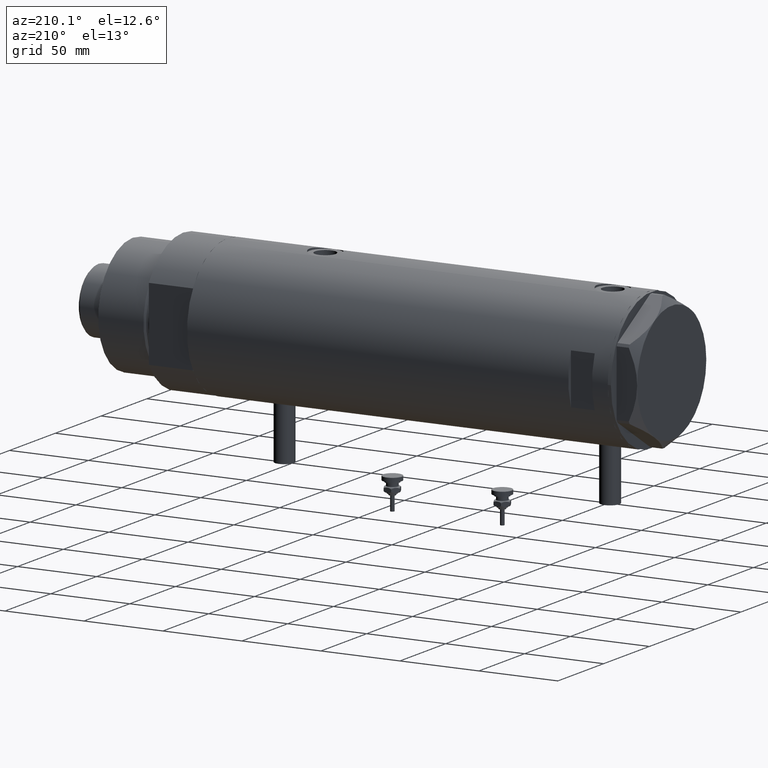
[diagram: clean part render]
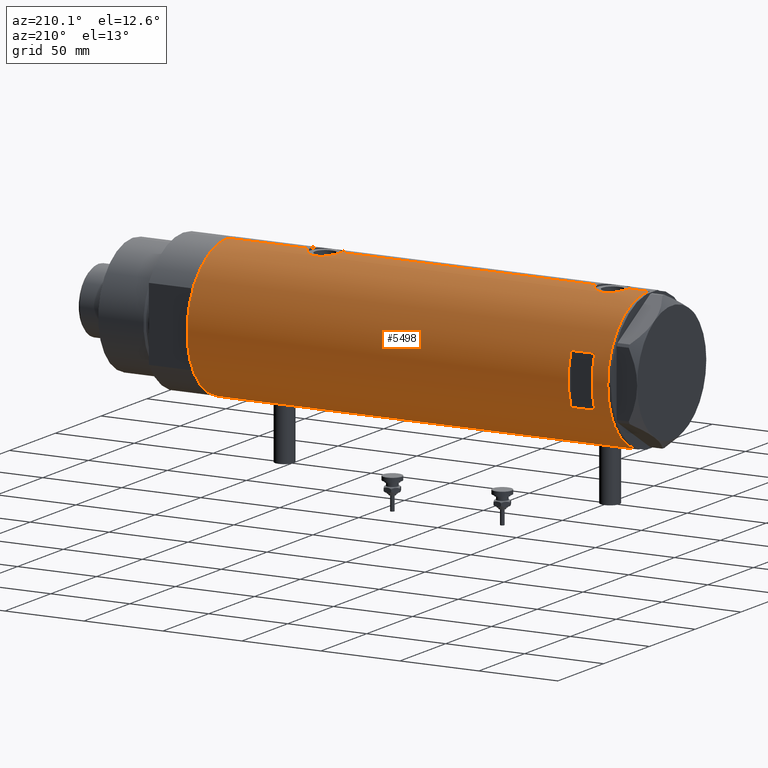
[diagram: same view with one face highlighted and labeled with its STEP entity id]
A machine part, auxiliary view. The second image highlights one B-rep face of the part: STEP entity #5498.
In plain terms, the highlighted cylindrical surface (partial cylindrical patch) has radius 44 mm, axis along (-1, -0, 0).
Its self-contained STEP definition (entity closure, byte-faithful):
#27 = CARTESIAN_POINT ( 'NONE',  ( -43.55973179376100290, 6.209370339246232717, 108.3793823294012668 ) ) ;
#59 = CARTESIAN_POINT ( 'NONE',  ( 42.96547725528408535, 9.488625330801083280, -67.87549652788928256 ) ) ;
#62 = CARTESIAN_POINT ( 'NONE',  ( -43.91413175532567692, 2.773555030353453965, 114.8158423836674302 ) ) ;
#72 = CARTESIAN_POINT ( 'NONE',  ( 43.04663170950395568, 9.110642017076083121, 106.7645249780960484 ) ) ;
#81 = CARTESIAN_POINT ( 'NONE',  ( 43.04652664061920575, 9.111152824375427173, -66.96541990785412679 ) ) ;
#92 = CARTESIAN_POINT ( 'NONE',  ( 43.71659050864932539, 5.015880325000608764, -79.77566825963823760 ) ) ;
#94 = CARTESIAN_POINT ( 'NONE',  ( -43.94507179847653333, 2.206027755801677870, 115.0513152228179052 ) ) ;
#109 = CARTESIAN_POINT ( 'NONE',  ( 43.17306590853068116, 8.492365194390515626, -65.80987467306543692 ) ) ;
#118 = CARTESIAN_POINT ( 'NONE',  ( -44.00000000000000000, 5.388445781982983516E-15, 102.9499999999999886 ) ) ;
#121 = CARTESIAN_POINT ( 'NONE',  ( -43.71901936021023971, 4.969830049220626655, 105.3883236230112317 ) ) ;
#128 = CARTESIAN_POINT ( 'NONE',  ( 43.04652664061922707, 9.111152824375430725, 115.0345800921458874 ) ) ;
#162 = VECTOR ( 'NONE', #1765, 1000.000000000000000 ) ;
#167 = VERTEX_POINT ( 'NONE', #1146 ) ;
#287 = LINE ( 'NONE', #1639, #4121 ) ;
#329 = CARTESIAN_POINT ( 'NONE',  ( -43.61859254253774054, 5.782454868881351295, -94.50213599105534001 ) ) ;
#334 = ORIENTED_EDGE ( 'NONE', *, *, #3874, .T. ) ;
#364 = CARTESIAN_POINT ( 'NONE',  ( -43.99417607942194763, 0.8200150578638748522, -90.69063327483260650 ) ) ;
#367 = CARTESIAN_POINT ( 'NONE',  ( 43.85884410404901246, 3.534688330930384925, 101.5398019124966567 ) ) ;
#394 = CARTESIAN_POINT ( 'NONE',  ( -43.97068415157983878, 1.617901284326946909, -90.85954871699952662 ) ) ;
#425 = ORIENTED_EDGE ( 'NONE', *, *, #2014, .F. ) ;
#444 = CARTESIAN_POINT ( 'NONE',  ( 0.000000000000000000, 0.000000000000000000, 108.1999999999999602 ) ) ;
#458 = VECTOR ( 'NONE', #969, 1000.000000000000000 ) ;
#473 = ORIENTED_EDGE ( 'NONE', *, *, #5295, .F. ) ;
#501 = CARTESIAN_POINT ( 'NONE',  ( -43.66555354895124452, 5.415612800338318600, 112.3265635717755799 ) ) ;
#508 = VERTEX_POINT ( 'NONE', #1233 ) ;
#515 = CARTESIAN_POINT ( 'NONE',  ( 44.00000000000000000, 0.000000000000000000, -133.1999999999999886 ) ) ;
#523 = CARTESIAN_POINT ( 'NONE',  ( 42.90786968859021044, 9.742642423712167599, -73.37802296547127412 ) ) ;
#541 = CARTESIAN_POINT ( 'NONE',  ( 43.13962074468734187, 8.660138848900679420, -66.08910258836066021 ) ) ;
#551 = CARTESIAN_POINT ( 'NONE',  ( 42.96879251999280314, 9.470609476412112926, -74.32722899941056482 ) ) ;
#556 = DIRECTION ( 'NONE',  ( 0.000000000000000000, 0.000000000000000000, 1.000000000000000000 ) ) ;
#585 = CARTESIAN_POINT ( 'NONE',  ( 44.00000000000000000, -3.135075661981687665E-15, -81.09999999999999432 ) ) ;
#586 = CARTESIAN_POINT ( 'NONE',  ( -43.80646232387288563, 4.132500855894024383, 113.9064558540335526 ) ) ;
#595 = CARTESIAN_POINT ( 'NONE',  ( 42.90786968859021044, 9.742642423712171151, 108.6219770345287685 ) ) ;
#598 = EDGE_CURVE ( 'NONE', #940, #1151, #4781, .T. ) ;
#599 = CARTESIAN_POINT ( 'NONE',  ( -44.00000000000000000, 5.388445916248353619E-15, 133.1999999999999886 ) ) ;
#616 = CARTESIAN_POINT ( 'NONE',  ( -43.61859254253774054, 5.782454868881351295, 111.5978640089446401 ) ) ;
#644 = CARTESIAN_POINT ( 'NONE',  ( -44.00000000000000000, 5.388445781982983516E-15, 102.9499999999999886 ) ) ;
#658 = CARTESIAN_POINT ( 'NONE',  ( -44.00000000000000000, 5.388445916248353619E-15, -133.1999999999999886 ) ) ;
#667 = CARTESIAN_POINT ( 'NONE',  ( 43.50382207688846137, 6.605942769308308371, -63.56395311161777784 ) ) ;
#690 = DIRECTION ( 'NONE',  ( 0.000000000000000000, 0.000000000000000000, 1.000000000000000000 ) ) ;
#738 = VERTEX_POINT ( 'NONE', #5865 ) ;
#748 = CARTESIAN_POINT ( 'NONE',  ( 44.00000000000000000, 0.000000000000000000, -133.1999999999999886 ) ) ;
#755 = VERTEX_POINT ( 'NONE', #2306 ) ;
#799 = CARTESIAN_POINT ( 'NONE',  ( -43.97181775256600389, 1.624866278047415680, -102.9489291838509359 ) ) ;
#803 = CARTESIAN_POINT ( 'NONE',  ( 44.00000000000002132, 0.6630566900259825536, 100.9000000000000199 ) ) ;
#826 = CARTESIAN_POINT ( 'NONE',  ( -43.67863969133946966, 5.309394106110037370, -93.59620703497449767 ) ) ;
#846 = ORIENTED_EDGE ( 'NONE', *, *, #1731, .T. ) ;
#855 = CARTESIAN_POINT ( 'NONE',  ( -44.00000000000000711, 0.4135148353567996149, -90.64999999999996305 ) ) ;
#887 = DIRECTION ( 'NONE',  ( 1.000000000000000000, -8.881784197001252323E-16, 0.000000000000000000 ) ) ;
#889 = CARTESIAN_POINT ( 'NONE',  ( -43.83576802966640429, 3.813209221108459168, -101.8686549035471103 ) ) ;
#908 = CARTESIAN_POINT ( 'NONE',  ( -43.67867890111967455, 5.309046579850785541, -100.2042277907602141 ) ) ;
#937 = LINE ( 'NONE', #2902, #1123 ) ;
#940 = VERTEX_POINT ( 'NONE', #1224 ) ;
#969 = DIRECTION ( 'NONE',  ( 0.000000000000000000, 0.000000000000000000, 1.000000000000000000 ) ) ;
#979 = CARTESIAN_POINT ( 'NONE',  ( 43.98503110884232115, 1.314607393679875225, -81.03470984345550221 ) ) ;
#982 = CARTESIAN_POINT ( 'NONE',  ( 0.000000000000000000, 0.000000000000000000, -133.1999999999999886 ) ) ;
#1025 = CARTESIAN_POINT ( 'NONE',  ( 43.39051256276902535, 7.301963662770313057, -64.25975531787057093 ) ) ;
#1037 = CARTESIAN_POINT ( 'NONE',  ( -43.64133398152736021, 5.607447751852152606, 106.4321395498756715 ) ) ;
#1041 = CIRCLE ( 'NONE', #5596, 44.00000000000000000 ) ;
#1048 = CARTESIAN_POINT ( 'NONE',  ( 43.99635668041008074, 0.6544833911834539997, 120.8840070847752912 ) ) ;
#1065 = CARTESIAN_POINT ( 'NONE',  ( 42.84850876528982866, 10.00026482975808051, -70.44941694529578058 ) ) ;
#1073 = CARTESIAN_POINT ( 'NONE',  ( 43.39051256276903246, 7.301963662770311281, 117.7402446821294149 ) ) ;
#1098 = CARTESIAN_POINT ( 'NONE',  ( 44.00000000000000000, 0.000000000000000000, 133.1999999999999886 ) ) ;
#1112 = CARTESIAN_POINT ( 'NONE',  ( 43.57805684119164624, 6.103282219787164564, -63.15183798352140343 ) ) ;
#1123 = VECTOR ( 'NONE', #3734, 1000.000000000000000 ) ;
#1127 = CARTESIAN_POINT ( 'NONE',  ( -43.88883895882799635, 3.130924084324101297, 103.7868754425185358 ) ) ;
#1128 = VERTEX_POINT ( 'NONE', #5664 ) ;
#1146 = CARTESIAN_POINT ( 'NONE',  ( 44.00000000000000000, -2.552687571866728611E-15, 100.8999999999999915 ) ) ;
#1151 = VERTEX_POINT ( 'NONE', #118 ) ;
#1156 = ORIENTED_EDGE ( 'NONE', *, *, #4025, .T. ) ;
#1165 = DIRECTION ( 'NONE',  ( 0.000000000000000000, 0.000000000000000000, 1.000000000000000000 ) ) ;
#1173 = ORIENTED_EDGE ( 'NONE', *, *, #5143, .F. ) ;
#1224 = CARTESIAN_POINT ( 'NONE',  ( -44.00000000000000000, 4.742435893011557518E-16, -90.64999999999997726 ) ) ;
#1228 = CIRCLE ( 'NONE', #4393, 44.00000000000000000 ) ;
#1233 = CARTESIAN_POINT ( 'NONE',  ( -44.00000000000000000, 5.388445916248353619E-15, -133.1999999999999886 ) ) ;
#1249 = VECTOR ( 'NONE', #1165, 1000.000000000000000 ) ;
#1253 = CARTESIAN_POINT ( 'NONE',  ( -43.64122538274737195, 5.608286354294323317, -94.13388613036657659 ) ) ;
#1283 = CARTESIAN_POINT ( 'NONE',  ( -43.64133398152736021, 5.607447751852152606, -99.66786045012435125 ) ) ;
#1310 = CARTESIAN_POINT ( 'NONE',  ( -43.58221825186232223, 6.049526113783018744, -98.52262970817956500 ) ) ;
#1314 = CARTESIAN_POINT ( 'NONE',  ( 43.46520118248735542, 6.843279251446916511, 103.6010167278783172 ) ) ;
#1341 = CARTESIAN_POINT ( 'NONE',  ( -43.59995593514495482, 5.920088975424566691, -94.88582091308217059 ) ) ;
#1351 = CIRCLE ( 'NONE', #3080, 44.00000000000000000 ) ;
#1371 = DIRECTION ( 'NONE',  ( -1.000000000000000000, -8.881784197001252323E-16, 0.000000000000000000 ) ) ;
#1374 = CARTESIAN_POINT ( 'NONE',  ( -43.80687348212602217, 4.128385987736833407, -101.6104874331096113 ) ) ;
#1389 = ORIENTED_EDGE ( 'NONE', *, *, #598, .T. ) ;
#1436 = LINE ( 'NONE', #515, #458 ) ;
#1450 = CARTESIAN_POINT ( 'NONE',  ( -43.71938389712227746, 4.966728892888062852, 113.0161445234086841 ) ) ;
#1487 = CARTESIAN_POINT ( 'NONE',  ( 42.84850876528983576, 10.00026482975808229, 111.5505830547042621 ) ) ;
#1494 = CARTESIAN_POINT ( 'NONE',  ( 44.00000000000000000, 0.3269372501759409411, -61.10000000000001563 ) ) ;
#1509 = CARTESIAN_POINT ( 'NONE',  ( 43.17277162440354488, 8.493905080221260562, -76.38787035108494194 ) ) ;
#1518 = CARTESIAN_POINT ( 'NONE',  ( 42.99303682946563043, 9.360292926890506848, 107.3657577979279694 ) ) ;
#1527 = CARTESIAN_POINT ( 'NONE',  ( 43.27871541412905998, 7.937063204555987461, -65.00825002753970239 ) ) ;
#1538 = CARTESIAN_POINT ( 'NONE',  ( -44.00000000000000711, 0.4135148353567996149, 115.4500000000000028 ) ) ;
#1558 = CARTESIAN_POINT ( 'NONE',  ( 43.35257020184193522, 7.523219862841653338, -64.50397445915864125 ) ) ;
#1584 = CARTESIAN_POINT ( 'NONE',  ( 43.71454618729809738, 5.012329428678969911, -62.44063025941689915 ) ) ;
#1604 = CARTESIAN_POINT ( 'NONE',  ( 43.24261242176996234, 8.130827601038829400, 116.7305518685416814 ) ) ;
#1633 = DIRECTION ( 'NONE',  ( 0.000000000000000000, 0.000000000000000000, 1.000000000000000000 ) ) ;
#1639 = CARTESIAN_POINT ( 'NONE',  ( 15.96871942267132027, 40.99999999999999289, -133.1999999999999886 ) ) ;
#1684 = VERTEX_POINT ( 'NONE', #1725 ) ;
#1692 = CARTESIAN_POINT ( 'NONE',  ( -43.87596296923810968, 3.305851531861728976, 103.8919641412373807 ) ) ;
#1725 = CARTESIAN_POINT ( 'NONE',  ( 44.00000000000000000, -3.917104602093038540E-21, 120.8999999999999773 ) ) ;
#1731 = EDGE_CURVE ( 'NONE', #508, #738, #5757, .T. ) ;
#1765 = DIRECTION ( 'NONE',  ( 0.000000000000000000, 0.000000000000000000, 1.000000000000000000 ) ) ;
#1779 = CARTESIAN_POINT ( 'NONE',  ( 0.000000000000000000, 0.000000000000000000, -133.1999999999999886 ) ) ;
#1786 = EDGE_CURVE ( 'NONE', #1873, #3318, #937, .T. ) ;
#1827 = VECTOR ( 'NONE', #1633, 1000.000000000000000 ) ;
#1844 = CARTESIAN_POINT ( 'NONE',  ( 44.00000000000000000, -2.552687571866728611E-15, 100.8999999999999915 ) ) ;
#1873 = VERTEX_POINT ( 'NONE', #2376 ) ;
#1884 = VERTEX_POINT ( 'NONE', #1923 ) ;
#1907 = CARTESIAN_POINT ( 'NONE',  ( -43.58221825186232223, 6.049526113783018744, 107.5773702918203583 ) ) ;
#1923 = CARTESIAN_POINT ( 'NONE',  ( 44.00000000000000000, -3.135075661981687665E-15, -81.09999999999999432 ) ) ;
#1940 = CARTESIAN_POINT ( 'NONE',  ( -43.57657963456318839, 6.089610171536606664, 110.6217853958080894 ) ) ;
#1941 = ORIENTED_EDGE ( 'NONE', *, *, #5137, .F. ) ;
#1961 = CARTESIAN_POINT ( 'NONE',  ( 43.57657781376909156, 6.094873943596678778, -79.03474301119597101 ) ) ;
#1962 = CARTESIAN_POINT ( 'NONE',  ( -43.58362292239462477, 6.039157555656595733, 110.8226357844803402 ) ) ;
#1969 = CARTESIAN_POINT ( 'NONE',  ( 43.98169492814103165, 1.310824514239766536, 120.8191978038068299 ) ) ;
#1986 = CARTESIAN_POINT ( 'NONE',  ( 44.00000000000001421, 0.6630566900259822205, -81.10000000000002274 ) ) ;
#1989 = CARTESIAN_POINT ( 'NONE',  ( -43.74805001749254529, 4.711035428619386956, 105.0722393587420243 ) ) ;
#1997 = CARTESIAN_POINT ( 'NONE',  ( 42.86396777580258544, 9.934664719553397916, 112.2157619902652073 ) ) ;
#2002 = ORIENTED_EDGE ( 'NONE', *, *, #4961, .F. ) ;
#2014 = EDGE_CURVE ( 'NONE', #5050, #2153, #1228, .T. ) ;
#2034 = CARTESIAN_POINT ( 'NONE',  ( 43.80640706382536109, 4.134078575915387965, 120.0113282156208925 ) ) ;
#2045 = CARTESIAN_POINT ( 'NONE',  ( 43.99635668041005943, 0.6544833911834577744, -61.11599291522468747 ) ) ;
#2153 = VERTEX_POINT ( 'NONE', #599 ) ;
#2165 = CARTESIAN_POINT ( 'NONE',  ( -43.97754480947185129, 1.419697478855583617, -90.80996723947920657 ) ) ;
#2173 = CARTESIAN_POINT ( 'NONE',  ( -43.80687348212602217, 4.128385987736833407, 104.4895125668903404 ) ) ;
#2194 = CARTESIAN_POINT ( 'NONE',  ( -43.95549163632549750, 2.014511215452027937, -102.8305895570497626 ) ) ;
#2199 = CARTESIAN_POINT ( 'NONE',  ( 44.00000000000000000, -3.917155089190972685E-21, -61.10000000000000142 ) ) ;
#2236 = AXIS2_PLACEMENT_3D ( 'NONE', #1779, #5909, #3583 ) ;
#2237 = CARTESIAN_POINT ( 'NONE',  ( 43.77939001959705223, 4.442287752090382291, 101.9169382244083977 ) ) ;
#2259 = ORIENTED_EDGE ( 'NONE', *, *, #3077, .F. ) ;
#2261 = CARTESIAN_POINT ( 'NONE',  ( -43.99999999999997158, 0.4081702738789203533, -103.1499999999999488 ) ) ;
#2287 = CARTESIAN_POINT ( 'NONE',  ( -43.71938389712227746, 4.966728892888062852, -93.08385547659128179 ) ) ;
#2306 = CARTESIAN_POINT ( 'NONE',  ( 15.96871942267132027, 40.99999999999999289, 108.1999999999999744 ) ) ;
#2363 = CARTESIAN_POINT ( 'NONE',  ( -43.59995593514495482, 5.920088975424566691, 111.2141790869178237 ) ) ;
#2376 = CARTESIAN_POINT ( 'NONE',  ( -15.96871942267132027, 40.99999999999999289, 108.1999999999999744 ) ) ;
#2406 = CARTESIAN_POINT ( 'NONE',  ( 43.92756755766649235, 2.604528169608121946, -61.42286588097655908 ) ) ;
#2418 = CARTESIAN_POINT ( 'NONE',  ( 43.85884410404901246, 3.534688330930384925, -80.46019808750332913 ) ) ;
#2426 = CARTESIAN_POINT ( 'NONE',  ( 42.96547725528407824, 9.488625330801083280, 114.1245034721107316 ) ) ;
#2450 = CARTESIAN_POINT ( 'NONE',  ( 43.35257020184194232, 7.523219862841656891, 117.4960255408413161 ) ) ;
#2466 = VERTEX_POINT ( 'NONE', #2199 ) ;
#2468 = CARTESIAN_POINT ( 'NONE',  ( 42.92259096922160921, 9.678247830257129536, -68.49994006971208194 ) ) ;
#2470 = CARTESIAN_POINT ( 'NONE',  ( -43.99417607942194763, 0.8200150578638748522, 115.4093667251674020 ) ) ;
#2479 = CARTESIAN_POINT ( 'NONE',  ( 43.50382207688846847, 6.605942769308303930, 118.4360468883821937 ) ) ;
#2510 = CARTESIAN_POINT ( 'NONE',  ( 42.92624534982631701, 9.661626915142809580, 108.2999199585528913 ) ) ;
#2538 = EDGE_CURVE ( 'NONE', #2466, #167, #1436, .T. ) ;
#2586 = CARTESIAN_POINT ( 'NONE',  ( -43.97181775256600389, 1.624866278047415680, 103.1510708161490300 ) ) ;
#2610 = B_SPLINE_CURVE_WITH_KNOTS ( 'NONE', 3,
 ( #3523, #855, #364, #2165, #394, #4954, #3979, #5843, #5388, #5423, #5450, #5051, #2287, #826, #3176, #1253, #329, #1341, #3587, #2636, #5515, #5024, #3114, #5479, #1310, #3615, #3087, #1283, #4072, #908, #2667, #5936, #1374, #889, #4429, #4490, #5968, #4925, #2194, #799, #4008, #2261, #4097 ),
 .UNSPECIFIED., .F., .F.,
 ( 4, 2, 2, 2, 2, 2, 2, 2, 1, 2, 2, 2, 2, 2, 2, 2, 2, 2, 2, 2, 2, 4 ),
 ( 4.607873388256435088E-19, 0.001222818171749670340, 0.001834227257624505619, 0.002445636343499341114, 0.003668454515249027284, 0.004891272686998713454, 0.006114090858748398756, 0.006725499944623259188, 0.007336909030498119620, 0.007948318116372978318, 0.008559727202247837882, 0.009782545373997518848, 0.01100536354574719981, 0.01222818171749687904, 0.01283959080337173861, 0.01345099988924659644, 0.01467381806099631383, 0.01589663623274603296, 0.01650804531862088906, 0.01711945440449574862, 0.01834227257624546428, 0.01956509074799517994 ),
 .UNSPECIFIED. ) ;
#2636 = CARTESIAN_POINT ( 'NONE',  ( -43.57657963456318839, 6.089610171536606664, -95.47821460419186224 ) ) ;
#2667 = CARTESIAN_POINT ( 'NONE',  ( -43.71901936021023971, 4.969830049220626655, -100.7116763769886916 ) ) ;
#2670 = CARTESIAN_POINT ( 'NONE',  ( 43.94229162222111285, 2.275476993733910547, 101.1568553577768768 ) ) ;
#2783 = CARTESIAN_POINT ( 'NONE',  ( 0.000000000000000000, 0.000000000000000000, 133.1999999999999886 ) ) ;
#2806 = CARTESIAN_POINT ( 'NONE',  ( -43.88968326835893663, 3.132363423941621150, 114.6237923235648140 ) ) ;
#2828 = CARTESIAN_POINT ( 'NONE',  ( 43.92466059386730137, 2.593004216484783964, -80.76356669671353927 ) ) ;
#2850 = CARTESIAN_POINT ( 'NONE',  ( 43.27822890220284791, 7.945655169171514487, -77.20725383289291699 ) ) ;
#2861 = CARTESIAN_POINT ( 'NONE',  ( 43.13962074468734897, 8.660138848900670538, 115.9108974116393256 ) ) ;
#2870 = CARTESIAN_POINT ( 'NONE',  ( 43.80640706382535399, 4.134078575915395071, -61.98867178437915015 ) ) ;
#2884 = CARTESIAN_POINT ( 'NONE',  ( 42.86370458161099606, 9.935807968041567406, -72.40904550429866049 ) ) ;
#2885 = CARTESIAN_POINT ( 'NONE',  ( -43.66575107734168171, 5.414026674167576658, 106.0706491196230132 ) ) ;
#2895 = CARTESIAN_POINT ( 'NONE',  ( 44.00000000000000711, 0.3269372501759374994, 120.8999999999999488 ) ) ;
#2902 = CARTESIAN_POINT ( 'NONE',  ( -15.96871942267132027, 40.99999999999999289, -133.1999999999999886 ) ) ;
#2908 = B_SPLINE_CURVE_WITH_KNOTS ( 'NONE', 3,
 ( #4238, #1538, #2470, #3775, #4741, #5208, #94, #62, #2806, #4628, #586, #4291, #1450, #2914, #501, #5643, #616, #2363, #1962, #1940, #4173, #3322, #3746, #27, #1907, #3717, #5122, #1037, #2885, #4715, #121, #1989, #2173, #3868, #1692, #1127, #5267, #3898, #3984, #2586, #2971, #5363, #644 ),
 .UNSPECIFIED., .F., .F.,
 ( 4, 2, 2, 2, 2, 2, 2, 2, 1, 2, 2, 2, 2, 2, 2, 2, 2, 2, 2, 2, 2, 4 ),
 ( 4.607873388256435088E-19, 0.001222818171749670340, 0.001834227257624505619, 0.002445636343499341114, 0.003668454515249027284, 0.004891272686998713454, 0.006114090858748398756, 0.006725499944623259188, 0.007336909030498119620, 0.007948318116372978318, 0.008559727202247837882, 0.009782545373997518848, 0.01100536354574719981, 0.01222818171749687904, 0.01283959080337173861, 0.01345099988924659644, 0.01467381806099631383, 0.01589663623274603296, 0.01650804531862088906, 0.01711945440449574862, 0.01834227257624546428, 0.01956509074799517994 ),
 .UNSPECIFIED. ) ;
#2913 = CARTESIAN_POINT ( 'NONE',  ( 42.86396777580259965, 9.934664719553401468, -69.78423800973480695 ) ) ;
#2914 = CARTESIAN_POINT ( 'NONE',  ( -43.67863969133946966, 5.309394106110037370, 112.5037929650254540 ) ) ;
#2919 = CARTESIAN_POINT ( 'NONE',  ( 44.00000000000000000, -3.917104602093038540E-21, 120.8999999999999773 ) ) ;
#2949 = CARTESIAN_POINT ( 'NONE',  ( 43.17306590853067405, 8.492365194390513849, 116.1901253269345489 ) ) ;
#2958 = CARTESIAN_POINT ( 'NONE',  ( 44.00000000000000000, -3.917155089190972685E-21, -61.10000000000000142 ) ) ;
#2971 = CARTESIAN_POINT ( 'NONE',  ( -43.99413512814552263, 0.8228129877960659311, 102.9909168567417623 ) ) ;
#3007 = LINE ( 'NONE', #3452, #1249 ) ;
#3065 = VECTOR ( 'NONE', #3381, 1000.000000000000000 ) ;
#3077 = EDGE_CURVE ( 'NONE', #1128, #1151, #2908, .T. ) ;
#3080 = AXIS2_PLACEMENT_3D ( 'NONE', #3700, #5541, #887 ) ;
#3087 = CARTESIAN_POINT ( 'NONE',  ( -43.62981559643959883, 5.696090409300652802, -99.48051365414524128 ) ) ;
#3114 = CARTESIAN_POINT ( 'NONE',  ( -43.55382423478827292, 6.250151562062086441, -97.30589529487338041 ) ) ;
#3142 = CARTESIAN_POINT ( 'NONE',  ( 43.35294442506074120, 7.532526048221051873, 104.2906458550888971 ) ) ;
#3176 = CARTESIAN_POINT ( 'NONE',  ( -43.66555354895124452, 5.415612800338318600, -93.77343642822444281 ) ) ;
#3177 = CARTESIAN_POINT ( 'NONE',  ( 43.57657781376909156, 6.094873943596678778, 102.9652569888040290 ) ) ;
#3274 = CARTESIAN_POINT ( 'NONE',  ( 43.94229162222111285, 2.275476993733910991, -80.84314464222306640 ) ) ;
#3295 = CARTESIAN_POINT ( 'NONE',  ( 43.50265731352002518, 6.601850423195592121, -78.61819167298952493 ) ) ;
#3302 = CARTESIAN_POINT ( 'NONE',  ( 43.27871541412905287, 7.937063204555986573, 116.9917499724602976 ) ) ;
#3318 = VERTEX_POINT ( 'NONE', #5167 ) ;
#3322 = CARTESIAN_POINT ( 'NONE',  ( -43.55386785759471024, 6.249847571481740971, 109.6105494761795285 ) ) ;
#3333 = CARTESIAN_POINT ( 'NONE',  ( 43.77712723341632994, 4.432620652875498557, 119.8699500975997125 ) ) ;
#3356 = CARTESIAN_POINT ( 'NONE',  ( 43.13897484505559987, 8.663345277311663040, -76.10529600060515065 ) ) ;
#3378 = CARTESIAN_POINT ( 'NONE',  ( 43.77712723341632284, 4.432620652875510103, -62.13004990240030878 ) ) ;
#3381 = DIRECTION ( 'NONE',  ( 0.000000000000000000, 0.000000000000000000, 1.000000000000000000 ) ) ;
#3403 = CARTESIAN_POINT ( 'NONE',  ( 44.00000000000000000, 0.000000000000000000, -133.1999999999999886 ) ) ;
#3452 = CARTESIAN_POINT ( 'NONE',  ( 44.00000000000000000, 0.000000000000000000, -133.1999999999999886 ) ) ;
#3507 = EDGE_CURVE ( 'NONE', #167, #1684, #5648, .T. ) ;
#3523 = CARTESIAN_POINT ( 'NONE',  ( -44.00000000000000000, 4.742435893011557518E-16, -90.64999999999997726 ) ) ;
#3562 = CARTESIAN_POINT ( 'NONE',  ( 43.98503110884232115, 1.314607393679875669, 100.9652901565444836 ) ) ;
#3583 = DIRECTION ( 'NONE',  ( 1.000000000000000000, 0.000000000000000000, 0.000000000000000000 ) ) ;
#3587 = CARTESIAN_POINT ( 'NONE',  ( -43.58362292239462477, 6.039157555656595733, -95.27736421551958301 ) ) ;
#3590 = CARTESIAN_POINT ( 'NONE',  ( 43.61291203895921598, 5.829986172017926016, 102.7687128921316884 ) ) ;
#3602 = VERTEX_POINT ( 'NONE', #4360 ) ;
#3615 = CARTESIAN_POINT ( 'NONE',  ( -43.59867737633045692, 5.931302618788633296, -98.91249495029886418 ) ) ;
#3700 = CARTESIAN_POINT ( 'NONE',  ( 0.000000000000000000, 0.000000000000000000, 123.1999999999999744 ) ) ;
#3715 = CARTESIAN_POINT ( 'NONE',  ( 43.35294442506074830, 7.532526048221050097, -77.70935414491110294 ) ) ;
#3717 = CARTESIAN_POINT ( 'NONE',  ( -43.59867737633045692, 5.931302618788633296, 107.1875050497011301 ) ) ;
#3734 = DIRECTION ( 'NONE',  ( 0.000000000000000000, 0.000000000000000000, 1.000000000000000000 ) ) ;
#3746 = CARTESIAN_POINT ( 'NONE',  ( -43.55382423478827292, 6.250151562062086441, 108.7941047051266281 ) ) ;
#3751 = CARTESIAN_POINT ( 'NONE',  ( 43.88561577393361546, 3.228056721358708359, 120.3872166572782163 ) ) ;
#3753 = DIRECTION ( 'NONE',  ( 1.000000000000000000, 0.000000000000000000, 0.000000000000000000 ) ) ;
#3761 = CARTESIAN_POINT ( 'NONE',  ( 43.98169492814103165, 1.310824514239770533, -61.18080219619314875 ) ) ;
#3773 = CARTESIAN_POINT ( 'NONE',  ( 42.92624534982631701, 9.661626915142807803, -73.70008004144708025 ) ) ;
#3775 = CARTESIAN_POINT ( 'NONE',  ( -43.97754480947185129, 1.419697478855583617, 115.2900327605206883 ) ) ;
#3777 = DIRECTION ( 'NONE',  ( 1.000000000000000000, 0.000000000000000000, 0.000000000000000000 ) ) ;
#3791 = CARTESIAN_POINT ( 'NONE',  ( 43.24261242176995523, 8.130827601038829400, -65.26944813145829016 ) ) ;
#3816 = CARTESIAN_POINT ( 'NONE',  ( 42.84863276153905787, 9.999733523508361088, 110.2413009524922103 ) ) ;
#3868 = CARTESIAN_POINT ( 'NONE',  ( -43.83576802966640429, 3.813209221108459168, 104.2313450964528840 ) ) ;
#3874 = EDGE_CURVE ( 'NONE', #5877, #508, #1041, .T. ) ;
#3879 = CARTESIAN_POINT ( 'NONE',  ( 42.86370458161099606, 9.935807968041567406, 109.5909544957013395 ) ) ;
#3898 = CARTESIAN_POINT ( 'NONE',  ( -43.92459115390705193, 2.581892149020998950, 103.5045417292665206 ) ) ;
#3979 = CARTESIAN_POINT ( 'NONE',  ( -43.94507179847653333, 2.206027755801677870, -91.04868477718203224 ) ) ;
#3984 = CARTESIAN_POINT ( 'NONE',  ( -43.95549163632549750, 2.014511215452027937, 103.2694104429502033 ) ) ;
#4008 = CARTESIAN_POINT ( 'NONE',  ( -43.99413512814552263, 0.8228129877960659311, -103.1090831432581894 ) ) ;
#4011 = B_SPLINE_CURVE_WITH_KNOTS ( 'NONE', 3,
 ( #585, #1986, #979, #3274, #2828, #5670, #2418, #4237, #92, #5642, #1961, #3295, #5146, #3715, #2850, #1509, #3356, #4680, #4740, #5587, #551, #3773, #523, #2884, #4203, #1065, #2913, #2468, #59, #81, #4705, #541, #109, #3791, #1527, #1558, #1025, #667, #1112, #4669, #1584, #3378, #2870, #5657, #2406, #4757, #3761, #2045, #1494, #2958 ),
 .UNSPECIFIED., .F., .F.,
 ( 4, 2, 2, 2, 2, 2, 2, 2, 2, 2, 2, 2, 2, 2, 2, 2, 2, 2, 2, 2, 2, 2, 2, 2, 4 ),
 ( 3.045219632368639583E-18, 0.001960456513248893216, 0.002940684769873342860, 0.003920913026497792504, 0.005881369539746674445, 0.006861597796371113681, 0.007841826052995553784, 0.009802282566244465215, 0.01078251082286891746, 0.01176273907949336971, 0.01274296733611782195, 0.01372319559274227246, 0.01568365210599113879, 0.01764410861924000512, 0.01960456513248887145, 0.02058479338911330114, 0.02156502164573773431, 0.02254524990236216400, 0.02352547815898659370, 0.02548593467223548084, 0.02646616292885992441, 0.02744639118548436452, 0.02940684769873325166, 0.03038707595535769523, 0.03136730421198213187 ),
 .UNSPECIFIED. ) ;
#4025 = EDGE_CURVE ( 'NONE', #1128, #2153, #5033, .T. ) ;
#4044 = ORIENTED_EDGE ( 'NONE', *, *, #4844, .F. ) ;
#4072 = CARTESIAN_POINT ( 'NONE',  ( -43.66575107734168171, 5.414026674167576658, -100.0293508803769669 ) ) ;
#4081 = CARTESIAN_POINT ( 'NONE',  ( -44.00000000000000000, 5.388445916248353619E-15, -133.1999999999999886 ) ) ;
#4094 = DIRECTION ( 'NONE',  ( -0.000000000000000000, -0.000000000000000000, 1.000000000000000000 ) ) ;
#4097 = CARTESIAN_POINT ( 'NONE',  ( -44.00000000000000000, 5.388445781982983516E-15, -103.1499999999999915 ) ) ;
#4121 = VECTOR ( 'NONE', #4904, 1000.000000000000000 ) ;
#4134 = CARTESIAN_POINT ( 'NONE',  ( 43.97062489912108418, 1.639461988184795604, 120.7701462666598360 ) ) ;
#4173 = CARTESIAN_POINT ( 'NONE',  ( -43.55963022497231663, 6.210088036293396563, 110.0164616301742200 ) ) ;
#4203 = CARTESIAN_POINT ( 'NONE',  ( 42.84863276153907208, 9.999733523508362865, -71.75869904750778971 ) ) ;
#4236 = EDGE_CURVE ( 'NONE', #3318, #3602, #1351, .T. ) ;
#4237 = CARTESIAN_POINT ( 'NONE',  ( 43.77939001959705934, 4.442287752090383179, -80.08306177559163075 ) ) ;
#4238 = CARTESIAN_POINT ( 'NONE',  ( -44.00000000000000000, 4.742435893011557518E-16, 115.4500000000000028 ) ) ;
#4245 = CARTESIAN_POINT ( 'NONE',  ( 43.92756755766649235, 2.604528169608113064, 120.5771341190234125 ) ) ;
#4271 = CARTESIAN_POINT ( 'NONE',  ( 43.71454618729810448, 5.012329428678959253, 119.5593697405831364 ) ) ;
#4291 = CARTESIAN_POINT ( 'NONE',  ( -43.74833112883977293, 4.708208586952001617, 113.3305038350888196 ) ) ;
#4360 = CARTESIAN_POINT ( 'NONE',  ( 15.96871942267132027, 40.99999999999999289, 123.1999999999999744 ) ) ;
#4393 = AXIS2_PLACEMENT_3D ( 'NONE', #2783, #5601, #3753 ) ;
#4396 = FACE_OUTER_BOUND ( 'NONE', #5837, .T. ) ;
#4429 = CARTESIAN_POINT ( 'NONE',  ( -43.87596296923810968, 3.305851531861728976, -102.2080358587625852 ) ) ;
#4484 = FACE_BOUND ( 'NONE', #4552, .T. ) ;
#4490 = CARTESIAN_POINT ( 'NONE',  ( -43.88883895882799635, 3.130924084324101297, -102.3131245574814443 ) ) ;
#4492 = CARTESIAN_POINT ( 'NONE',  ( 43.92466059386729427, 2.593004216484783964, 101.2364333032864323 ) ) ;
#4533 = CARTESIAN_POINT ( 'NONE',  ( 43.17277162440354488, 8.493905080221262338, 105.6121296489150438 ) ) ;
#4552 = EDGE_LOOP ( 'NONE', ( #5083, #1941, #4772, #4829 ) ) ;
#4554 = CYLINDRICAL_SURFACE ( 'NONE', #2236, 44.00000000000000000 ) ;
#4566 = ORIENTED_EDGE ( 'NONE', *, *, #2538, .F. ) ;
#4628 = CARTESIAN_POINT ( 'NONE',  ( -43.83593455218809254, 3.811409182021277431, 114.1701492770349944 ) ) ;
#4669 = CARTESIAN_POINT ( 'NONE',  ( 43.68141895191831736, 5.292250119194735980, -62.60895047714807049 ) ) ;
#4680 = CARTESIAN_POINT ( 'NONE',  ( 43.07598348983507464, 8.971306953823004804, -75.52969423187190046 ) ) ;
#4705 = CARTESIAN_POINT ( 'NONE',  ( 43.07641822757290129, 8.969229373860576615, -66.66603764209827432 ) ) ;
#4715 = CARTESIAN_POINT ( 'NONE',  ( -43.67867890111967455, 5.309046579850785541, 105.8957722092397518 ) ) ;
#4740 = CARTESIAN_POINT ( 'NONE',  ( 43.04663170950396278, 9.110642017076083121, -75.23547502190392322 ) ) ;
#4741 = CARTESIAN_POINT ( 'NONE',  ( -43.97068415157983878, 1.617901284326946909, 115.2404512830004251 ) ) ;
#4748 = CARTESIAN_POINT ( 'NONE',  ( 42.96879251999280314, 9.470609476412112926, 107.6727710005894210 ) ) ;
#4757 = CARTESIAN_POINT ( 'NONE',  ( 43.97062489912107708, 1.639461988184798935, -61.22985373334012849 ) ) ;
#4772 = ORIENTED_EDGE ( 'NONE', *, *, #4236, .F. ) ;
#4780 = CARTESIAN_POINT ( 'NONE',  ( 43.57805684119164624, 6.103282219787165452, 118.8481620164785824 ) ) ;
#4781 = LINE ( 'NONE', #658, #5751 ) ;
#4829 = ORIENTED_EDGE ( 'NONE', *, *, #1786, .F. ) ;
#4844 = EDGE_CURVE ( 'NONE', #5877, #1884, #5699, .T. ) ;
#4904 = DIRECTION ( 'NONE',  ( -0.000000000000000000, -0.000000000000000000, -1.000000000000000000 ) ) ;
#4925 = CARTESIAN_POINT ( 'NONE',  ( -43.92459115390705193, 2.581892149020998950, -102.5954582707334168 ) ) ;
#4954 = CARTESIAN_POINT ( 'NONE',  ( -43.95446647384543581, 2.010857111636599637, -90.97875773636060615 ) ) ;
#4961 = EDGE_CURVE ( 'NONE', #940, #738, #2610, .T. ) ;
#4991 = CARTESIAN_POINT ( 'NONE',  ( 43.27822890220284791, 7.945655169171516263, 104.7927461671070688 ) ) ;
#5009 = CIRCLE ( 'NONE', #5784, 44.00000000000000000 ) ;
#5024 = CARTESIAN_POINT ( 'NONE',  ( -43.55386785759471024, 6.249847571481740971, -96.48945052382043741 ) ) ;
#5025 = CARTESIAN_POINT ( 'NONE',  ( 43.07598348983507464, 8.971306953823011909, 106.4703057681281280 ) ) ;
#5033 = LINE ( 'NONE', #4081, #162 ) ;
#5050 = VERTEX_POINT ( 'NONE', #1098 ) ;
#5051 = CARTESIAN_POINT ( 'NONE',  ( -43.74833112883977293, 4.708208586952001617, -92.76949616491124573 ) ) ;
#5083 = ORIENTED_EDGE ( 'NONE', *, *, #5586, .F. ) ;
#5122 = CARTESIAN_POINT ( 'NONE',  ( -43.62981559643959883, 5.696090409300652802, 106.6194863458547530 ) ) ;
#5137 = EDGE_CURVE ( 'NONE', #3602, #755, #287, .T. ) ;
#5143 = EDGE_CURVE ( 'NONE', #1684, #5050, #3007, .T. ) ;
#5146 = CARTESIAN_POINT ( 'NONE',  ( 43.46520118248735542, 6.843279251446916511, -78.39898327212164020 ) ) ;
#5167 = CARTESIAN_POINT ( 'NONE',  ( -15.96871942267132027, 40.99999999999999289, 123.1999999999999744 ) ) ;
#5186 = CARTESIAN_POINT ( 'NONE',  ( 43.68141895191831736, 5.292250119194734204, 119.3910495228519437 ) ) ;
#5208 = CARTESIAN_POINT ( 'NONE',  ( -43.95446647384543581, 2.010857111636599637, 115.1212422636393597 ) ) ;
#5218 = CARTESIAN_POINT ( 'NONE',  ( 43.07641822757289418, 8.969229373860565957, 115.3339623579017257 ) ) ;
#5267 = CARTESIAN_POINT ( 'NONE',  ( -43.91315028150560096, 2.769134003554746482, 103.5931738062459431 ) ) ;
#5295 = EDGE_CURVE ( 'NONE', #1884, #2466, #4011, .T. ) ;
#5363 = CARTESIAN_POINT ( 'NONE',  ( -43.99999999999997158, 0.4081702738789203533, 102.9499999999999460 ) ) ;
#5388 = CARTESIAN_POINT ( 'NONE',  ( -43.88968326835893663, 3.132363423941621150, -91.47620767643519457 ) ) ;
#5423 = CARTESIAN_POINT ( 'NONE',  ( -43.83593455218809254, 3.811409182021277431, -91.92985072296495730 ) ) ;
#5450 = CARTESIAN_POINT ( 'NONE',  ( -43.80646232387288563, 4.132500855894024383, -92.19354414596644176 ) ) ;
#5453 = CARTESIAN_POINT ( 'NONE',  ( 43.50265731352001808, 6.601850423195591233, 103.3818083270104466 ) ) ;
#5479 = CARTESIAN_POINT ( 'NONE',  ( -43.55973179376100290, 6.209370339246232717, -97.72061767059869908 ) ) ;
#5481 = CARTESIAN_POINT ( 'NONE',  ( 43.13897484505560698, 8.663345277311673698, 105.8947039993948920 ) ) ;
#5498 = ADVANCED_FACE ( 'NONE', ( #4484, #4396 ), #4554, .T. ) ;
#5515 = CARTESIAN_POINT ( 'NONE',  ( -43.55963022497231663, 6.210088036293396563, -96.08353836982574592 ) ) ;
#5516 = CARTESIAN_POINT ( 'NONE',  ( 43.88297407487991109, 3.222431612395379119, 101.4277179797065713 ) ) ;
#5541 = DIRECTION ( 'NONE',  ( -0.000000000000000000, -0.000000000000000000, -1.000000000000000000 ) ) ;
#5586 = EDGE_CURVE ( 'NONE', #755, #1873, #5009, .T. ) ;
#5587 = CARTESIAN_POINT ( 'NONE',  ( 42.99303682946561622, 9.360292926890506848, -74.63424220207204485 ) ) ;
#5596 = AXIS2_PLACEMENT_3D ( 'NONE', #982, #556, #3777 ) ;
#5601 = DIRECTION ( 'NONE',  ( 0.000000000000000000, 0.000000000000000000, 1.000000000000000000 ) ) ;
#5642 = CARTESIAN_POINT ( 'NONE',  ( 43.61291203895920887, 5.829986172017926016, -79.23128710786828321 ) ) ;
#5643 = CARTESIAN_POINT ( 'NONE',  ( -43.64122538274737195, 5.608286354294323317, 111.9661138696334035 ) ) ;
#5648 = B_SPLINE_CURVE_WITH_KNOTS ( 'NONE', 3,
 ( #1844, #803, #3562, #2670, #4492, #5516, #367, #2237, #5914, #3590, #3177, #5453, #1314, #3142, #4991, #4533, #5481, #5025, #72, #1518, #4748, #2510, #595, #3879, #3816, #1487, #1997, #5737, #2426, #128, #5218, #2861, #2949, #1604, #3302, #2450, #1073, #2479, #4780, #5186, #4271, #3333, #2034, #3751, #4245, #4134, #1969, #1048, #2895, #2919 ),
 .UNSPECIFIED., .F., .F.,
 ( 4, 2, 2, 2, 2, 2, 2, 2, 2, 2, 2, 2, 2, 2, 2, 2, 2, 2, 2, 2, 2, 2, 2, 2, 4 ),
 ( 2.479523669370822448E-18, 0.001960456513248879339, 0.002940684769873313370, 0.003920913026497747401, 0.005881369539746631077, 0.006861597796371071180, 0.007841826052995510415, 0.009802282566244392356, 0.01078251082286883072, 0.01176273907949326909, 0.01274296733611770746, 0.01372319559274214583, 0.01568365210599106593, 0.01764410861923998430, 0.01960456513248890267, 0.02058479338911334278, 0.02156502164573777941, 0.02254524990236221951, 0.02352547815898665615, 0.02548593467223552941, 0.02646616292885996952, 0.02744639118548440615, 0.02940684769873327942, 0.03038707595535771258, 0.03136730421198213881 ),
 .UNSPECIFIED. ) ;
#5657 = CARTESIAN_POINT ( 'NONE',  ( 43.88561577393362256, 3.228056721358715020, -61.61278334272176949 ) ) ;
#5664 = CARTESIAN_POINT ( 'NONE',  ( -44.00000000000000000, 4.742435893011557518E-16, 115.4500000000000028 ) ) ;
#5670 = CARTESIAN_POINT ( 'NONE',  ( 43.88297407487990398, 3.222431612395380007, -80.57228202029341446 ) ) ;
#5699 = LINE ( 'NONE', #3403, #3065 ) ;
#5737 = CARTESIAN_POINT ( 'NONE',  ( 42.92259096922160211, 9.678247830257127760, 113.5000599302879607 ) ) ;
#5751 = VECTOR ( 'NONE', #690, 1000.000000000000000 ) ;
#5757 = LINE ( 'NONE', #5825, #1827 ) ;
#5769 = ORIENTED_EDGE ( 'NONE', *, *, #3507, .F. ) ;
#5784 = AXIS2_PLACEMENT_3D ( 'NONE', #444, #4094, #1371 ) ;
#5825 = CARTESIAN_POINT ( 'NONE',  ( -44.00000000000000000, 5.388445916248353619E-15, -133.1999999999999886 ) ) ;
#5837 = EDGE_LOOP ( 'NONE', ( #334, #846, #2002, #1389, #2259, #1156, #425, #1173, #5769, #4566, #473, #4044 ) ) ;
#5843 = CARTESIAN_POINT ( 'NONE',  ( -43.91413175532567692, 2.773555030353453965, -91.28415761633256409 ) ) ;
#5865 = CARTESIAN_POINT ( 'NONE',  ( -44.00000000000000000, 5.388445781982983516E-15, -103.1499999999999915 ) ) ;
#5877 = VERTEX_POINT ( 'NONE', #748 ) ;
#5909 = DIRECTION ( 'NONE',  ( 0.000000000000000000, 0.000000000000000000, 1.000000000000000000 ) ) ;
#5914 = CARTESIAN_POINT ( 'NONE',  ( 43.71659050864931828, 5.015880325000608764, 102.2243317403618050 ) ) ;
#5936 = CARTESIAN_POINT ( 'NONE',  ( -43.74805001749254529, 4.711035428619386956, -101.0277606412579843 ) ) ;
#5968 = CARTESIAN_POINT ( 'NONE',  ( -43.91315028150560096, 2.769134003554746482, -102.5068261937540370 ) ) ;